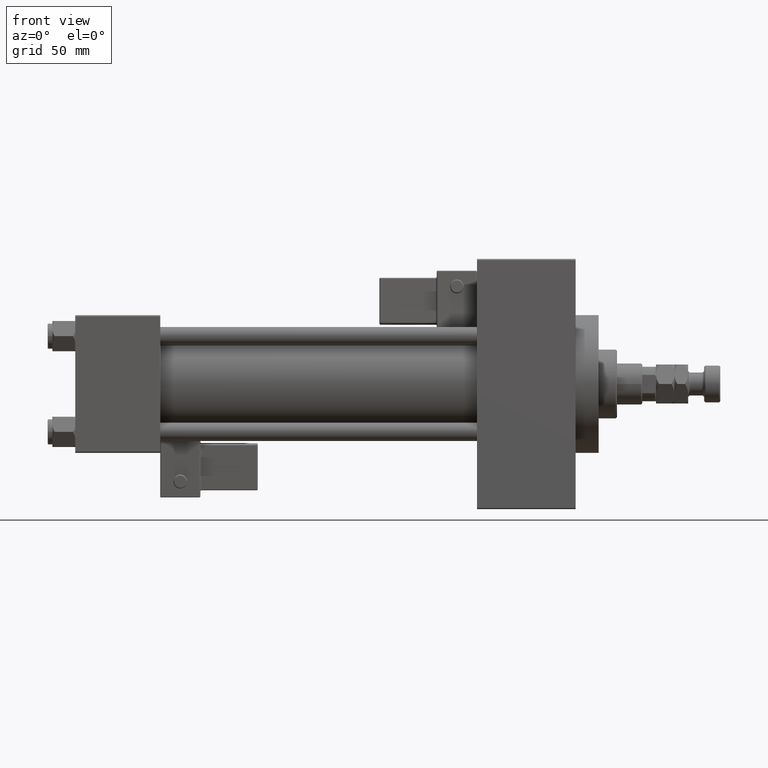
[diagram: clean part render]
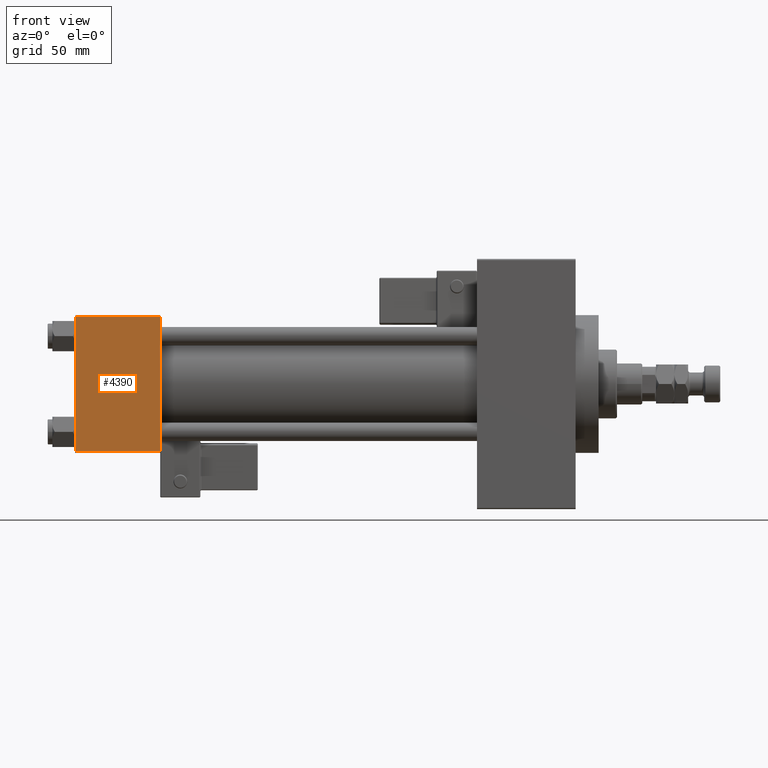
[diagram: same view with one face highlighted and labeled with its STEP entity id]
A machine part, front view. The second image highlights one B-rep face of the part: STEP entity #4390.
In plain terms, the highlighted planar face has unit normal (0, 1, 0).
Its self-contained STEP definition (entity closure, byte-faithful):
#694 = EDGE_CURVE ( 'NONE', #7043, #47478, #28980, .T. ) ;
#1222 = EDGE_CURVE ( 'NONE', #44518, #7043, #27770, .T. ) ;
#2575 = VECTOR ( 'NONE', #41392, 1000.000000000000000 ) ;
#3567 = CARTESIAN_POINT ( 'NONE',  ( 37.00000000000000000, -30.00000000000000000, 29.49999999999999289 ) ) ;
#4158 = DIRECTION ( 'NONE',  ( -1.000000000000000000, 0.000000000000000000, 0.000000000000000000 ) ) ;
#4390 = ADVANCED_FACE ( 'NONE', ( #22844 ), #14812, .F. ) ;
#6991 = VERTEX_POINT ( 'NONE', #10902 ) ;
#7005 = CARTESIAN_POINT ( 'NONE',  ( 0.000000000000000000, -30.00000000000000000, 29.49999999999999289 ) ) ;
#7043 = VERTEX_POINT ( 'NONE', #7005 ) ;
#10902 = CARTESIAN_POINT ( 'NONE',  ( 37.00000000000000000, -30.00000000000000000, -29.50000000000001776 ) ) ;
#12412 = EDGE_LOOP ( 'NONE', ( #49443, #44232, #35187, #32550 ) ) ;
#14812 = PLANE ( 'NONE',  #31469 ) ;
#17537 = LINE ( 'NONE', #44769, #2575 ) ;
#18175 = CARTESIAN_POINT ( 'NONE',  ( 37.00000000000000000, -30.00000000000000000, 29.99999999999999289 ) ) ;
#18692 = DIRECTION ( 'NONE',  ( -0.000000000000000000, 1.000000000000000000, 0.000000000000000000 ) ) ;
#19952 = VECTOR ( 'NONE', #31244, 1000.000000000000000 ) ;
#21189 = CARTESIAN_POINT ( 'NONE',  ( 0.000000000000000000, -30.00000000000000000, 29.99999999999999289 ) ) ;
#22844 = FACE_OUTER_BOUND ( 'NONE', #12412, .T. ) ;
#23113 = VECTOR ( 'NONE', #4158, 1000.000000000000000 ) ;
#25220 = CARTESIAN_POINT ( 'NONE',  ( 0.000000000000000000, -30.00000000000000000, -29.50000000000001776 ) ) ;
#27770 = LINE ( 'NONE', #39680, #23113 ) ;
#28980 = LINE ( 'NONE', #21189, #42115 ) ;
#31244 = DIRECTION ( 'NONE',  ( 1.000000000000000000, 0.000000000000000000, 0.000000000000000000 ) ) ;
#31469 = AXIS2_PLACEMENT_3D ( 'NONE', #18175, #18692, #50581 ) ;
#32550 = ORIENTED_EDGE ( 'NONE', *, *, #1222, .T. ) ;
#34132 = EDGE_CURVE ( 'NONE', #47478, #6991, #35116, .T. ) ;
#34776 = EDGE_CURVE ( 'NONE', #44518, #6991, #17537, .T. ) ;
#35116 = LINE ( 'NONE', #50942, #19952 ) ;
#35187 = ORIENTED_EDGE ( 'NONE', *, *, #34776, .F. ) ;
#36982 = DIRECTION ( 'NONE',  ( 0.000000000000000000, 0.000000000000000000, -1.000000000000000000 ) ) ;
#39680 = CARTESIAN_POINT ( 'NONE',  ( 37.00000000000000000, -30.00000000000000000, 29.49999999999999289 ) ) ;
#41392 = DIRECTION ( 'NONE',  ( 0.000000000000000000, 0.000000000000000000, -1.000000000000000000 ) ) ;
#42115 = VECTOR ( 'NONE', #36982, 1000.000000000000000 ) ;
#44232 = ORIENTED_EDGE ( 'NONE', *, *, #34132, .T. ) ;
#44518 = VERTEX_POINT ( 'NONE', #3567 ) ;
#44769 = CARTESIAN_POINT ( 'NONE',  ( 37.00000000000000000, -30.00000000000000000, 29.99999999999999289 ) ) ;
#47478 = VERTEX_POINT ( 'NONE', #25220 ) ;
#49443 = ORIENTED_EDGE ( 'NONE', *, *, #694, .T. ) ;
#50581 = DIRECTION ( 'NONE',  ( 0.000000000000000000, -0.000000000000000000, 1.000000000000000000 ) ) ;
#50942 = CARTESIAN_POINT ( 'NONE',  ( 37.00000000000000000, -30.00000000000000000, -29.50000000000001776 ) ) ;